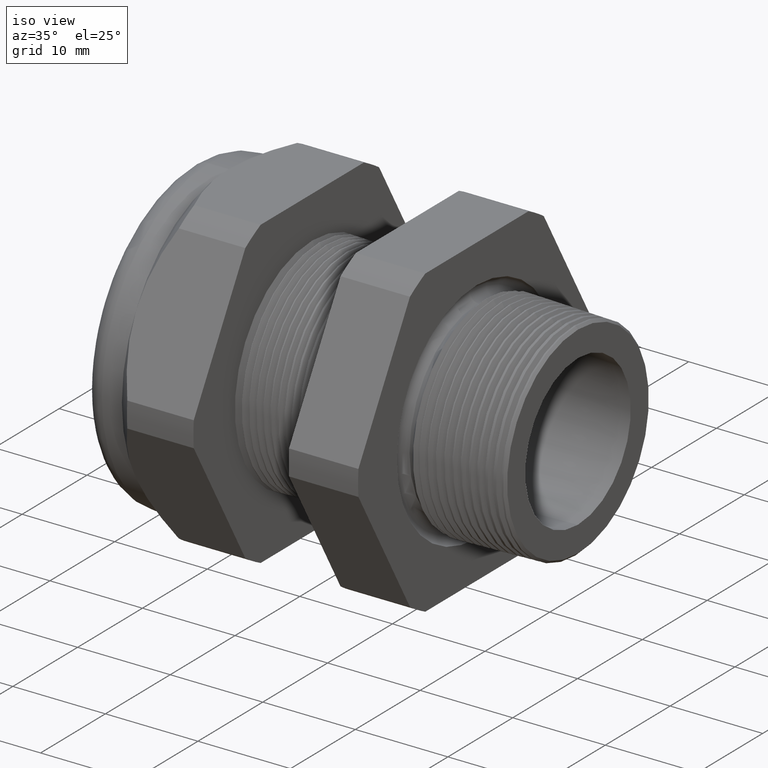
[diagram: clean part render]
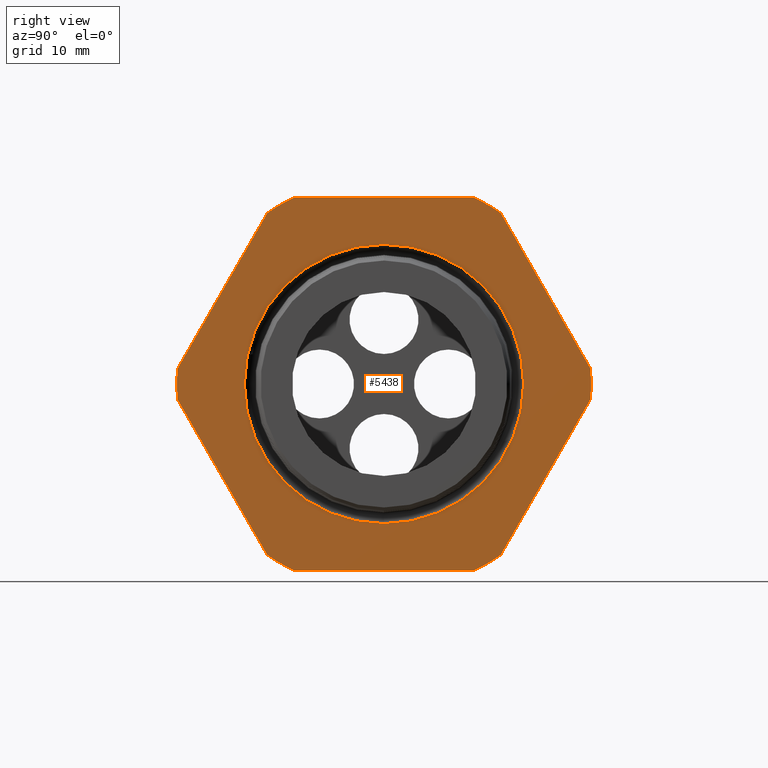
[diagram: tour spotlight — one face highlighted and labeled with its STEP entity id]
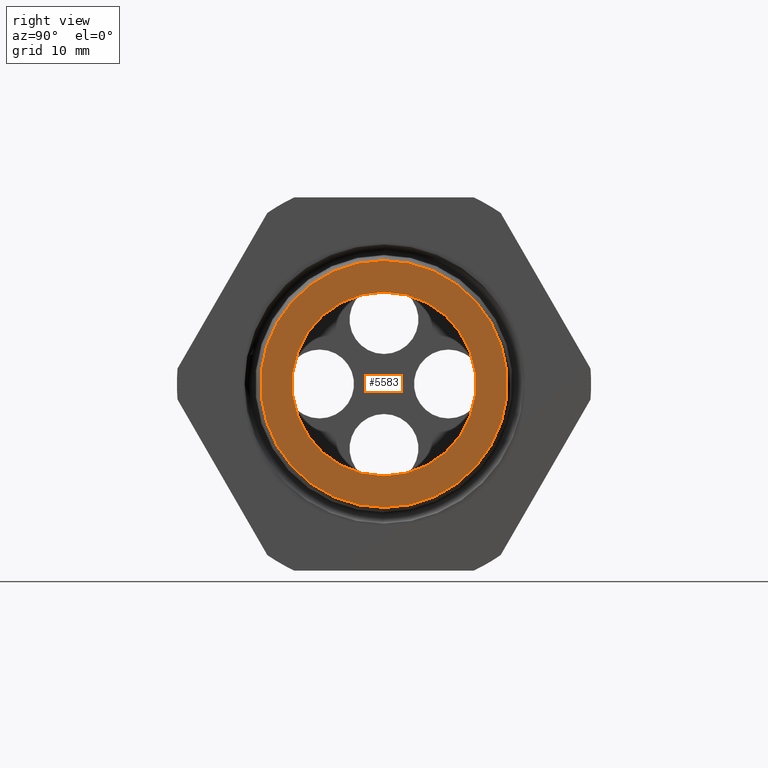
[diagram: tour spotlight — one face highlighted and labeled with its STEP entity id]
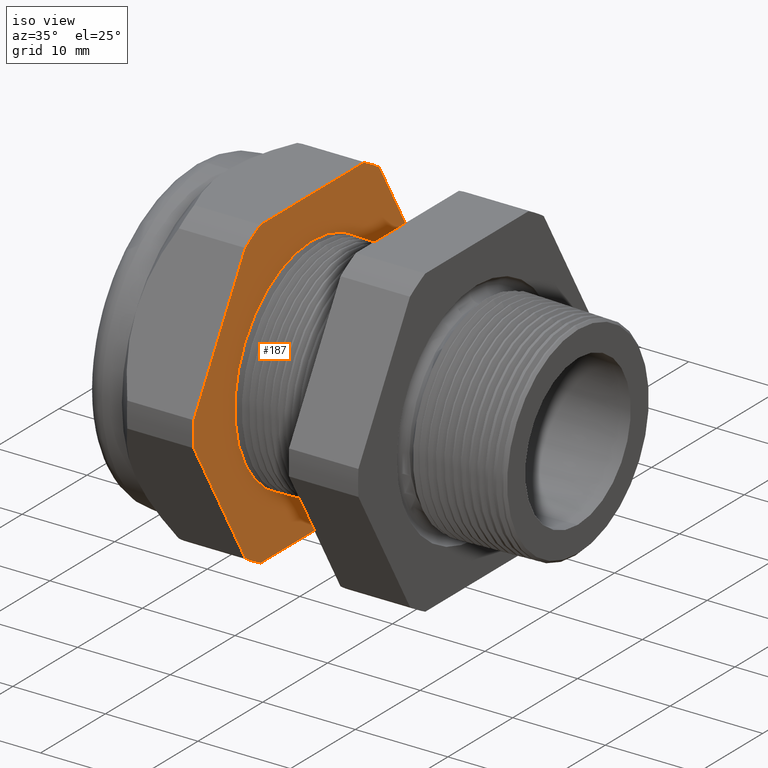
[diagram: tour spotlight — one face highlighted and labeled with its STEP entity id]
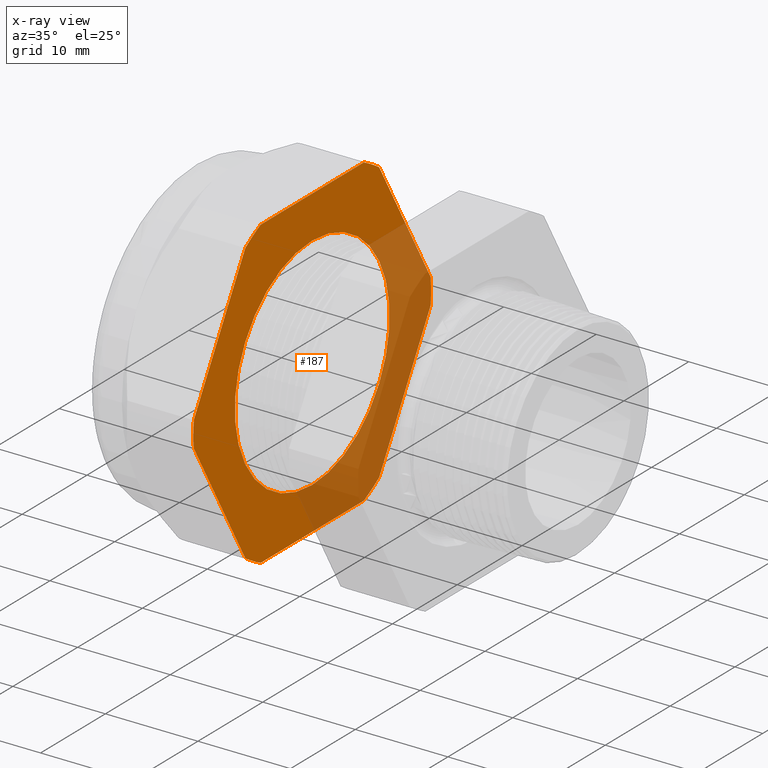
[diagram: x-ray of the same camera — body ghosted, this tour face saturated]
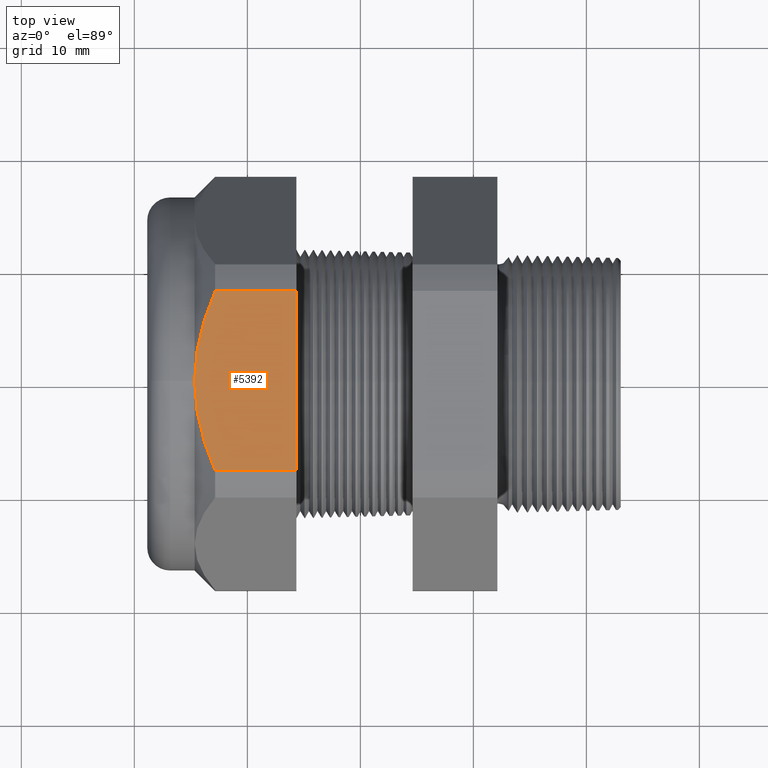
[diagram: tour spotlight — one face highlighted and labeled with its STEP entity id]
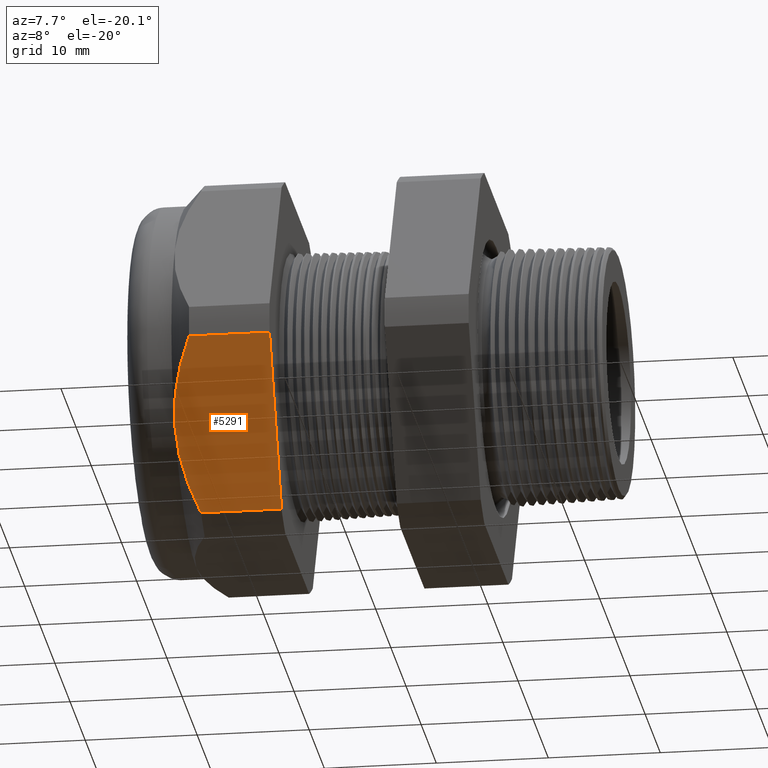
[diagram: tour spotlight — one face highlighted and labeled with its STEP entity id]
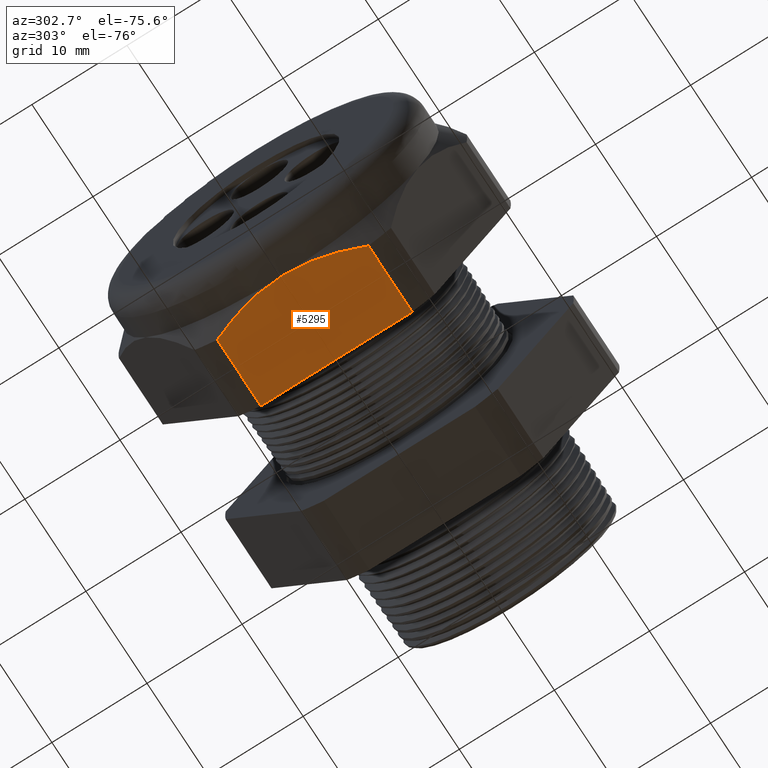
[diagram: tour spotlight — one face highlighted and labeled with its STEP entity id]
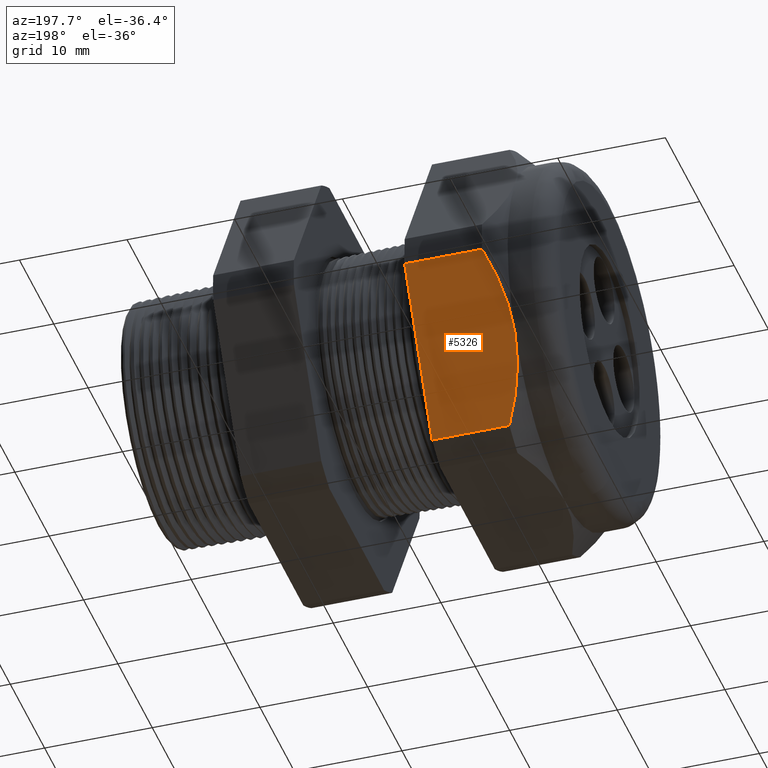
[diagram: tour spotlight — one face highlighted and labeled with its STEP entity id]
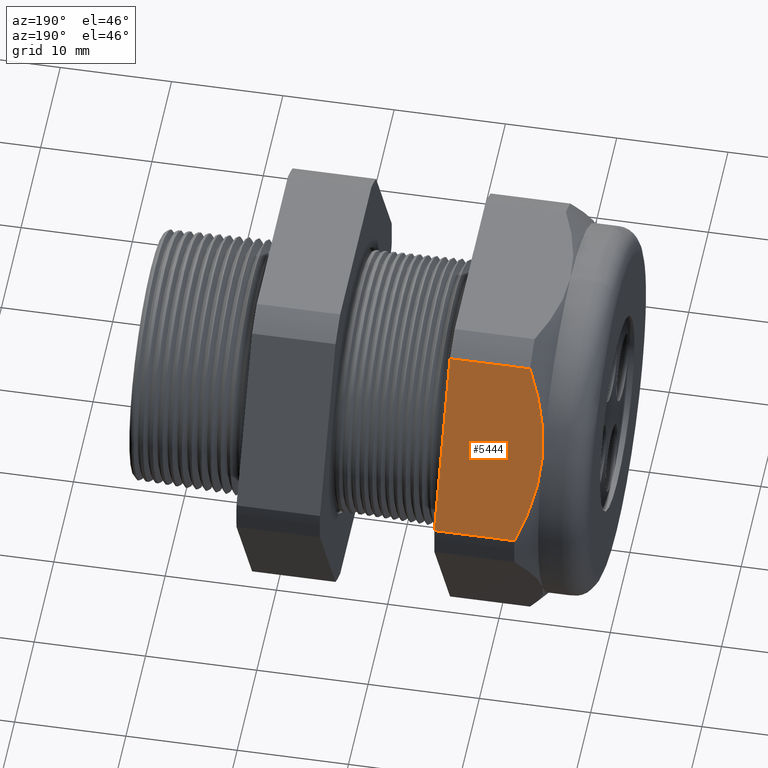
[diagram: tour spotlight — one face highlighted and labeled with its STEP entity id]
A machine part: a face-by-face anatomy tour. The part has 214 B-rep faces; the first image is the clean iso view, then the 8 largest visible faces are spotlighted one at a time (largest first), each with its STEP entity span.

Face 1 — right view, entity #5438. In plain terms, the highlighted planar face has unit normal (1, 0, 0).
Definition (entity closure, byte-faithful):
#2371 = DIRECTION ( 'NONE',  ( 0.0000000000000000000, 0.0000000000000000000, -1.000000000000000000 ) ) ;
#2372 = DIRECTION ( 'NONE',  ( 1.000000000000000000, 0.0000000000000000000, 0.0000000000000000000 ) ) ;
#2373 = CARTESIAN_POINT ( 'NONE',  ( -0.3100000000000000000, 0.0000000000000000000, 0.0000000000000000000 ) ) ;
#2374 = AXIS2_PLACEMENT_3D ( 'NONE', #2373, #2372, #2371 ) ;
#2379 = CIRCLE ( 'NONE', #2374, 0.4863026235185991000 ) ;
#2417 = CARTESIAN_POINT ( 'NONE',  ( -0.3100000000000000000, 0.0000000000000000000, -0.4863026235185991000 ) ) ;
#2459 = CARTESIAN_POINT ( 'NONE',  ( -0.3100000000000000000, 5.955489513090126900E-017, 0.4863026235185991000 ) ) ;
#3676 = CARTESIAN_POINT ( 'NONE',  ( -0.3100000000000000000, 0.0000000000000000000, 0.0000000000000000000 ) ) ;
#3677 = CARTESIAN_POINT ( 'NONE',  ( -0.3100000000000000000, 0.7194909755756817600, -0.05380507471562094600 ) ) ;
#3678 = CARTESIAN_POINT ( 'NONE',  ( -0.3100000000000000000, 0.4063420493440886800, -0.5961949252843790100 ) ) ;
#3679 = DIRECTION ( 'NONE',  ( 0.0000000000000000000, 0.4999999999999996100, 0.8660254037844388200 ) ) ;
#3680 = VECTOR ( 'NONE', #3679, 39.37007874015748900 ) ;
#3681 = CARTESIAN_POINT ( 'NONE',  ( -0.3100000000000000000, 0.8879165124598849000, 0.2379165124598850200 ) ) ;
#3682 = LINE ( 'NONE', #3681, #3680 ) ;
#3724 = CARTESIAN_POINT ( 'NONE',  ( -0.3100000000000000000, 0.3131489262315937900, 0.6499999999999999100 ) ) ;
#3725 = DIRECTION ( 'NONE',  ( 0.0000000000000000000, 0.0000000000000000000, -1.000000000000000000 ) ) ;
#3726 = DIRECTION ( 'NONE',  ( 1.000000000000000000, 0.0000000000000000000, 0.0000000000000000000 ) ) ;
#3727 = CARTESIAN_POINT ( 'NONE',  ( -0.3100000000000000000, 0.0000000000000000000, 0.0000000000000000000 ) ) ;
#3728 = AXIS2_PLACEMENT_3D ( 'NONE', #3727, #3726, #3725 ) ;
#3729 = CIRCLE ( 'NONE', #3728, 0.7215000000000000300 ) ;
#3730 = CARTESIAN_POINT ( 'NONE',  ( -0.3100000000000000000, 0.4063420493440890700, 0.5961949252843787800 ) ) ;
#3731 = DIRECTION ( 'NONE',  ( 0.0000000000000000000, -0.4999999999999998900, 0.8660254037844386000 ) ) ;
#3732 = VECTOR ( 'NONE', #3731, 39.37007874015748100 ) ;
#3733 = CARTESIAN_POINT ( 'NONE',  ( -0.3100000000000000000, 0.8879165124598854500, -0.2379165124598849300 ) ) ;
#3734 = LINE ( 'NONE', #3733, #3732 ) ;
#3735 = CARTESIAN_POINT ( 'NONE',  ( -0.3100000000000000000, 0.7194909755756817600, 0.05380507471562173000 ) ) ;
#3736 = DIRECTION ( 'NONE',  ( 0.0000000000000000000, 0.0000000000000000000, -1.000000000000000000 ) ) ;
#3737 = DIRECTION ( 'NONE',  ( 1.000000000000000000, 0.0000000000000000000, 0.0000000000000000000 ) ) ;
#3738 = AXIS2_PLACEMENT_3D ( 'NONE', #3676, #3737, #3736 ) ;
#3739 = CIRCLE ( 'NONE', #3738, 0.7214999999999999200 ) ;
#3757 = DIRECTION ( 'NONE',  ( 0.0000000000000000000, 0.0000000000000000000, -1.000000000000000000 ) ) ;
#3758 = DIRECTION ( 'NONE',  ( 1.000000000000000000, 0.0000000000000000000, 0.0000000000000000000 ) ) ;
#3759 = CARTESIAN_POINT ( 'NONE',  ( -0.3100000000000000000, 0.0000000000000000000, 0.0000000000000000000 ) ) ;
#3760 = AXIS2_PLACEMENT_3D ( 'NONE', #3759, #3758, #3757 ) ;
#3761 = CIRCLE ( 'NONE', #3760, 0.4863026235185991000 ) ;
#3762 = DIRECTION ( 'NONE',  ( 0.0000000000000000000, 0.0000000000000000000, -1.000000000000000000 ) ) ;
#3763 = DIRECTION ( 'NONE',  ( 1.000000000000000000, 0.0000000000000000000, 0.0000000000000000000 ) ) ;
#3764 = CARTESIAN_POINT ( 'NONE',  ( -0.3100000000000000000, 1.300000000000000000, 0.0000000000000000000 ) ) ;
#3765 = AXIS2_PLACEMENT_3D ( 'NONE', #3764, #3763, #3762 ) ;
#3766 = PLANE ( 'NONE',  #3765 ) ;
#3767 = FACE_OUTER_BOUND ( 'NONE', #5415, .T. ) ;
#3772 = FACE_BOUND ( 'NONE', #5439, .T. ) ;
#3798 = CARTESIAN_POINT ( 'NONE',  ( -0.3100000000000000000, 0.0000000000000000000, 0.0000000000000000000 ) ) ;
#3799 = CARTESIAN_POINT ( 'NONE',  ( -0.3100000000000000000, 0.3131489262315934100, -0.6500000000000001300 ) ) ;
#3800 = DIRECTION ( 'NONE',  ( 0.0000000000000000000, 1.000000000000000000, 0.0000000000000000000 ) ) ;
#3801 = VECTOR ( 'NONE', #3800, 39.37007874015748100 ) ;
#3802 = CARTESIAN_POINT ( 'NONE',  ( -0.3100000000000000000, 1.300000000000000000, -0.6500000000000001300 ) ) ;
#3803 = LINE ( 'NONE', #3802, #3801 ) ;
#3804 = CARTESIAN_POINT ( 'NONE',  ( -0.3100000000000000000, -0.3131489262315934100, -0.6500000000000001300 ) ) ;
#3805 = DIRECTION ( 'NONE',  ( 0.0000000000000000000, 0.0000000000000000000, -1.000000000000000000 ) ) ;
#3806 = DIRECTION ( 'NONE',  ( 1.000000000000000000, 0.0000000000000000000, 0.0000000000000000000 ) ) ;
#3807 = CARTESIAN_POINT ( 'NONE',  ( -0.3100000000000000000, 0.0000000000000000000, 0.0000000000000000000 ) ) ;
#3808 = AXIS2_PLACEMENT_3D ( 'NONE', #3807, #3806, #3805 ) ;
#3809 = CIRCLE ( 'NONE', #3808, 0.7215000000000000300 ) ;
#3827 = CARTESIAN_POINT ( 'NONE',  ( -0.3100000000000000000, -0.7194909755756819800, 0.05380507471562025900 ) ) ;
#3828 = DIRECTION ( 'NONE',  ( 0.0000000000000000000, -0.4999999999999995600, -0.8660254037844388200 ) ) ;
#3829 = VECTOR ( 'NONE', #3828, 39.37007874015748900 ) ;
#3830 = CARTESIAN_POINT ( 'NONE',  ( -0.3100000000000000000, -0.2379165124598858200, 0.8879165124598844500 ) ) ;
#3831 = LINE ( 'NONE', #3830, #3829 ) ;
#3832 = CARTESIAN_POINT ( 'NONE',  ( -0.3100000000000000000, -0.4063420493440885700, 0.5961949252843791200 ) ) ;
#3833 = DIRECTION ( 'NONE',  ( 0.0000000000000000000, 0.0000000000000000000, -1.000000000000000000 ) ) ;
#3834 = DIRECTION ( 'NONE',  ( 1.000000000000000000, 0.0000000000000000000, 0.0000000000000000000 ) ) ;
#3835 = CARTESIAN_POINT ( 'NONE',  ( -0.3100000000000000000, 0.0000000000000000000, 0.0000000000000000000 ) ) ;
#3836 = AXIS2_PLACEMENT_3D ( 'NONE', #3835, #3834, #3833 ) ;
#3837 = CIRCLE ( 'NONE', #3836, 0.7215000000000000300 ) ;
#3838 = CARTESIAN_POINT ( 'NONE',  ( -0.3100000000000000000, -0.3131489262315937400, 0.6500000000000000200 ) ) ;
#3839 = DIRECTION ( 'NONE',  ( 0.0000000000000000000, -1.000000000000000000, 0.0000000000000000000 ) ) ;
#3840 = VECTOR ( 'NONE', #3839, 39.37007874015748100 ) ;
#3841 = CARTESIAN_POINT ( 'NONE',  ( -0.3100000000000000000, 1.300000000000000000, 0.6499999999999999100 ) ) ;
#3842 = LINE ( 'NONE', #3841, #3840 ) ;
#3853 = DIRECTION ( 'NONE',  ( 0.0000000000000000000, 0.0000000000000000000, -1.000000000000000000 ) ) ;
#3854 = DIRECTION ( 'NONE',  ( 1.000000000000000000, 0.0000000000000000000, 0.0000000000000000000 ) ) ;
#3855 = AXIS2_PLACEMENT_3D ( 'NONE', #3798, #3854, #3853 ) ;
#3856 = CIRCLE ( 'NONE', #3855, 0.7215000000000000300 ) ;
#3881 = CARTESIAN_POINT ( 'NONE',  ( -0.3100000000000000000, -0.4063420493440881300, -0.5961949252843793400 ) ) ;
#3882 = DIRECTION ( 'NONE',  ( 0.0000000000000000000, 0.5000000000000001100, -0.8660254037844386000 ) ) ;
#3883 = VECTOR ( 'NONE', #3882, 39.37007874015748100 ) ;
#3884 = CARTESIAN_POINT ( 'NONE',  ( -0.3100000000000000000, -0.2379165124598852700, -0.8879165124598854500 ) ) ;
#3885 = LINE ( 'NONE', #3884, #3883 ) ;
#3886 = CARTESIAN_POINT ( 'NONE',  ( -0.3100000000000000000, -0.7194909755756819800, -0.05380507471562082100 ) ) ;
#3887 = DIRECTION ( 'NONE',  ( 0.0000000000000000000, 0.0000000000000000000, -1.000000000000000000 ) ) ;
#3888 = DIRECTION ( 'NONE',  ( 1.000000000000000000, 0.0000000000000000000, 0.0000000000000000000 ) ) ;
#3889 = CARTESIAN_POINT ( 'NONE',  ( -0.3100000000000000000, 0.0000000000000000000, 0.0000000000000000000 ) ) ;
#3890 = AXIS2_PLACEMENT_3D ( 'NONE', #3889, #3888, #3887 ) ;
#3891 = CIRCLE ( 'NONE', #3890, 0.7215000000000000300 ) ;
#4742 = EDGE_CURVE ( 'NONE', #4758, #4750, #2379, .T. ) ;
#4750 = VERTEX_POINT ( 'NONE', #2417 ) ;
#4758 = VERTEX_POINT ( 'NONE', #2459 ) ;
#5415 = EDGE_LOOP ( 'NONE', ( #5416, #5420, #5423, #5426, #5483, #5486, #5489, #5492, #5496, #5470, #5473, #5476 ) ) ;
#5416 = ORIENTED_EDGE ( 'NONE', *, *, #5417, .T. ) ;
#5417 = EDGE_CURVE ( 'NONE', #5418, #5419, #3682, .T. ) ;
#5418 = VERTEX_POINT ( 'NONE', #3678 ) ;
#5419 = VERTEX_POINT ( 'NONE', #3677 ) ;
#5420 = ORIENTED_EDGE ( 'NONE', *, *, #5421, .T. ) ;
#5421 = EDGE_CURVE ( 'NONE', #5419, #5422, #3739, .T. ) ;
#5422 = VERTEX_POINT ( 'NONE', #3735 ) ;
#5423 = ORIENTED_EDGE ( 'NONE', *, *, #5424, .T. ) ;
#5424 = EDGE_CURVE ( 'NONE', #5422, #5425, #3734, .T. ) ;
#5425 = VERTEX_POINT ( 'NONE', #3730 ) ;
#5426 = ORIENTED_EDGE ( 'NONE', *, *, #5427, .T. ) ;
#5427 = EDGE_CURVE ( 'NONE', #5425, #5428, #3729, .T. ) ;
#5428 = VERTEX_POINT ( 'NONE', #3724 ) ;
#5438 = ADVANCED_FACE ( 'NONE', ( #3772, #3767 ), #3766, .T. ) ;
#5439 = EDGE_LOOP ( 'NONE', ( #5440, #5499 ) ) ;
#5440 = ORIENTED_EDGE ( 'NONE', *, *, #5441, .F. ) ;
#5441 = EDGE_CURVE ( 'NONE', #4750, #4758, #3761, .T. ) ;
#5470 = ORIENTED_EDGE ( 'NONE', *, *, #5471, .T. ) ;
#5471 = EDGE_CURVE ( 'NONE', #5498, #5472, #3809, .T. ) ;
#5472 = VERTEX_POINT ( 'NONE', #3804 ) ;
#5473 = ORIENTED_EDGE ( 'NONE', *, *, #5474, .T. ) ;
#5474 = EDGE_CURVE ( 'NONE', #5472, #5475, #3803, .T. ) ;
#5475 = VERTEX_POINT ( 'NONE', #3799 ) ;
#5476 = ORIENTED_EDGE ( 'NONE', *, *, #5477, .T. ) ;
#5477 = EDGE_CURVE ( 'NONE', #5475, #5418, #3856, .T. ) ;
#5483 = ORIENTED_EDGE ( 'NONE', *, *, #5484, .T. ) ;
#5484 = EDGE_CURVE ( 'NONE', #5428, #5485, #3842, .T. ) ;
#5485 = VERTEX_POINT ( 'NONE', #3838 ) ;
#5486 = ORIENTED_EDGE ( 'NONE', *, *, #5487, .T. ) ;
#5487 = EDGE_CURVE ( 'NONE', #5485, #5488, #3837, .T. ) ;
#5488 = VERTEX_POINT ( 'NONE', #3832 ) ;
#5489 = ORIENTED_EDGE ( 'NONE', *, *, #5490, .T. ) ;
#5490 = EDGE_CURVE ( 'NONE', #5488, #5491, #3831, .T. ) ;
#5491 = VERTEX_POINT ( 'NONE', #3827 ) ;
#5492 = ORIENTED_EDGE ( 'NONE', *, *, #5493, .T. ) ;
#5493 = EDGE_CURVE ( 'NONE', #5491, #5495, #3891, .T. ) ;
#5495 = VERTEX_POINT ( 'NONE', #3886 ) ;
#5496 = ORIENTED_EDGE ( 'NONE', *, *, #5497, .T. ) ;
#5497 = EDGE_CURVE ( 'NONE', #5495, #5498, #3885, .T. ) ;
#5498 = VERTEX_POINT ( 'NONE', #3881 ) ;
#5499 = ORIENTED_EDGE ( 'NONE', *, *, #4742, .F. ) ;

Face 2 — right view, entity #5583. In plain terms, the highlighted planar face has unit normal (1, 0, 0).
Definition (entity closure, byte-faithful):
#3 = VERTEX_POINT ( 'NONE', #790 ) ;
#8 = VERTEX_POINT ( 'NONE', #768 ) ;
#18 = EDGE_CURVE ( 'NONE', #8, #3, #819, .T. ) ;
#768 = CARTESIAN_POINT ( 'NONE',  ( 0.1200000000000000200, 0.0000000000000000000, 0.3204016610924743100 ) ) ;
#790 = CARTESIAN_POINT ( 'NONE',  ( 0.1200000000000000200, 4.135642411978520400E-017, -0.3204016610924743100 ) ) ;
#815 = DIRECTION ( 'NONE',  ( 0.0000000000000000000, 0.0000000000000000000, -1.000000000000000000 ) ) ;
#816 = DIRECTION ( 'NONE',  ( 1.000000000000000000, 0.0000000000000000000, 0.0000000000000000000 ) ) ;
#817 = CARTESIAN_POINT ( 'NONE',  ( 0.1200000000000000200, 0.0000000000000000000, 0.0000000000000000000 ) ) ;
#818 = AXIS2_PLACEMENT_3D ( 'NONE', #817, #816, #815 ) ;
#819 = CIRCLE ( 'NONE', #818, 0.3204016610924743100 ) ;
#3876 = DIRECTION ( 'NONE',  ( 0.0000000000000000000, 0.0000000000000000000, -1.000000000000000000 ) ) ;
#3877 = DIRECTION ( 'NONE',  ( 1.000000000000000000, 0.0000000000000000000, 0.0000000000000000000 ) ) ;
#3878 = CARTESIAN_POINT ( 'NONE',  ( 0.1200000000000000200, 0.0000000000000000000, 0.0000000000000000000 ) ) ;
#3879 = AXIS2_PLACEMENT_3D ( 'NONE', #3878, #3877, #3876 ) ;
#3880 = CIRCLE ( 'NONE', #3879, 0.4301292403640452600 ) ;
#3915 = DIRECTION ( 'NONE',  ( 0.0000000000000000000, 0.0000000000000000000, -1.000000000000000000 ) ) ;
#3916 = DIRECTION ( 'NONE',  ( 1.000000000000000000, 0.0000000000000000000, 0.0000000000000000000 ) ) ;
#3917 = CARTESIAN_POINT ( 'NONE',  ( 0.1200000000000000200, 0.0000000000000000000, 0.0000000000000000000 ) ) ;
#3918 = AXIS2_PLACEMENT_3D ( 'NONE', #3917, #3916, #3915 ) ;
#3923 = CIRCLE ( 'NONE', #3918, 0.3204016610924743100 ) ;
#3988 = DIRECTION ( 'NONE',  ( 0.0000000000000000000, 0.0000000000000000000, -1.000000000000000000 ) ) ;
#3989 = DIRECTION ( 'NONE',  ( 1.000000000000000000, 0.0000000000000000000, 0.0000000000000000000 ) ) ;
#3990 = CARTESIAN_POINT ( 'NONE',  ( 0.1200000000000000200, 0.3204016610924743100, 0.0000000000000000000 ) ) ;
#3991 = AXIS2_PLACEMENT_3D ( 'NONE', #3990, #3989, #3988 ) ;
#3992 = PLANE ( 'NONE',  #3991 ) ;
#3993 = FACE_BOUND ( 'NONE', #5504, .T. ) ;
#3994 = FACE_OUTER_BOUND ( 'NONE', #5500, .T. ) ;
#4371 = CARTESIAN_POINT ( 'NONE',  ( 0.1200000000000000200, 5.332067285935767100E-017, -0.4301292403640452600 ) ) ;
#4372 = CARTESIAN_POINT ( 'NONE',  ( 0.1200000000000000200, 0.0000000000000000000, 0.4301292403640452600 ) ) ;
#4373 = DIRECTION ( 'NONE',  ( 0.0000000000000000000, 0.0000000000000000000, -1.000000000000000000 ) ) ;
#4374 = DIRECTION ( 'NONE',  ( 1.000000000000000000, 0.0000000000000000000, 0.0000000000000000000 ) ) ;
#4375 = CARTESIAN_POINT ( 'NONE',  ( 0.1200000000000000200, 0.0000000000000000000, 0.0000000000000000000 ) ) ;
#4376 = AXIS2_PLACEMENT_3D ( 'NONE', #4375, #4374, #4373 ) ;
#4377 = CIRCLE ( 'NONE', #4376, 0.4301292403640452600 ) ;
#5500 = EDGE_LOOP ( 'NONE', ( #5501, #5503 ) ) ;
#5501 = ORIENTED_EDGE ( 'NONE', *, *, #5502, .T. ) ;
#5502 = EDGE_CURVE ( 'NONE', #5786, #5787, #3880, .T. ) ;
#5503 = ORIENTED_EDGE ( 'NONE', *, *, #5785, .T. ) ;
#5504 = EDGE_LOOP ( 'NONE', ( #5505, #5506 ) ) ;
#5505 = ORIENTED_EDGE ( 'NONE', *, *, #18, .F. ) ;
#5506 = ORIENTED_EDGE ( 'NONE', *, *, #5522, .F. ) ;
#5522 = EDGE_CURVE ( 'NONE', #3, #8, #3923, .T. ) ;
#5583 = ADVANCED_FACE ( 'NONE', ( #3994, #3993 ), #3992, .T. ) ;
#5785 = EDGE_CURVE ( 'NONE', #5787, #5786, #4377, .T. ) ;
#5786 = VERTEX_POINT ( 'NONE', #4372 ) ;
#5787 = VERTEX_POINT ( 'NONE', #4371 ) ;

Face 3 — iso view, entity #187. An x-ray twin of the same camera follows (body ghosted, this face saturated) — the face is partly hidden behind the body. In plain terms, the highlighted planar face has unit normal (1, 0, 0).
Definition (entity closure, byte-faithful):
#174 = ORIENTED_EDGE ( 'NONE', *, *, #5376, .T. ) ;
#175 = ORIENTED_EDGE ( 'NONE', *, *, #5391, .T. ) ;
#176 = ORIENTED_EDGE ( 'NONE', *, *, #5408, .T. ) ;
#177 = ORIENTED_EDGE ( 'NONE', *, *, #5340, .T. ) ;
#178 = ORIENTED_EDGE ( 'NONE', *, *, #5358, .T. ) ;
#179 = ORIENTED_EDGE ( 'NONE', *, *, #5290, .T. ) ;
#180 = ORIENTED_EDGE ( 'NONE', *, *, #5362, .T. ) ;
#181 = ORIENTED_EDGE ( 'NONE', *, *, #5294, .T. ) ;
#187 = ADVANCED_FACE ( 'NONE', ( #1143, #1142 ), #1141, .T. ) ;
#188 = EDGE_LOOP ( 'NONE', ( #189, #191 ) ) ;
#189 = ORIENTED_EDGE ( 'NONE', *, *, #190, .F. ) ;
#190 = EDGE_CURVE ( 'NONE', #5713, #4649, #1136, .T. ) ;
#191 = ORIENTED_EDGE ( 'NONE', *, *, #5728, .F. ) ;
#192 = EDGE_LOOP ( 'NONE', ( #193, #4647, #5539, #5540, #174, #175, #176, #177, #178, #179, #180, #181 ) ) ;
#193 = ORIENTED_EDGE ( 'NONE', *, *, #5312, .T. ) ;
#1132 = DIRECTION ( 'NONE',  ( 0.0000000000000000000, 0.0000000000000000000, -1.000000000000000000 ) ) ;
#1133 = DIRECTION ( 'NONE',  ( 1.000000000000000000, 0.0000000000000000000, 0.0000000000000000000 ) ) ;
#1134 = CARTESIAN_POINT ( 'NONE',  ( -1.010314960629921100, 0.0000000000000000000, 0.0000000000000000000 ) ) ;
#1135 = AXIS2_PLACEMENT_3D ( 'NONE', #1134, #1133, #1132 ) ;
#1136 = CIRCLE ( 'NONE', #1135, 0.4699999999999999700 ) ;
#1137 = DIRECTION ( 'NONE',  ( 0.0000000000000000000, 0.0000000000000000000, -1.000000000000000000 ) ) ;
#1138 = DIRECTION ( 'NONE',  ( 1.000000000000000000, 0.0000000000000000000, 0.0000000000000000000 ) ) ;
#1139 = CARTESIAN_POINT ( 'NONE',  ( -1.010314960629921100, 0.4699999999999999700, 0.0000000000000000000 ) ) ;
#1140 = AXIS2_PLACEMENT_3D ( 'NONE', #1139, #1138, #1137 ) ;
#1141 = PLANE ( 'NONE',  #1140 ) ;
#1142 = FACE_OUTER_BOUND ( 'NONE', #192, .T. ) ;
#1143 = FACE_BOUND ( 'NONE', #188, .T. ) ;
#2180 = CARTESIAN_POINT ( 'NONE',  ( -1.010314960629921100, 5.755839955992559700E-017, -0.4699999999999999700 ) ) ;
#3410 = CARTESIAN_POINT ( 'NONE',  ( -1.010314960629921100, 0.0000000000000000000, 0.0000000000000000000 ) ) ;
#3412 = DIRECTION ( 'NONE',  ( 0.0000000000000000000, 0.0000000000000000000, -1.000000000000000000 ) ) ;
#3413 = DIRECTION ( 'NONE',  ( 1.000000000000000000, 0.0000000000000000000, 0.0000000000000000000 ) ) ;
#3414 = AXIS2_PLACEMENT_3D ( 'NONE', #3420, #3413, #3412 ) ;
#3415 = CIRCLE ( 'NONE', #3414, 0.7215000000000000300 ) ;
#3420 = CARTESIAN_POINT ( 'NONE',  ( -1.010314960629921100, 0.0000000000000000000, 0.0000000000000000000 ) ) ;
#3449 = CARTESIAN_POINT ( 'NONE',  ( -1.010314960629921100, -0.3131489262315934100, -0.6500000000000001300 ) ) ;
#3460 = DIRECTION ( 'NONE',  ( 0.0000000000000000000, 0.0000000000000000000, -1.000000000000000000 ) ) ;
#3461 = DIRECTION ( 'NONE',  ( 1.000000000000000000, 0.0000000000000000000, 0.0000000000000000000 ) ) ;
#3462 = AXIS2_PLACEMENT_3D ( 'NONE', #3410, #3461, #3460 ) ;
#3463 = CIRCLE ( 'NONE', #3462, 0.7215000000000000300 ) ;
#3468 = DIRECTION ( 'NONE',  ( 0.0000000000000000000, 0.4999999999999996100, 0.8660254037844388200 ) ) ;
#3469 = VECTOR ( 'NONE', #3468, 39.37007874015748900 ) ;
#3470 = CARTESIAN_POINT ( 'NONE',  ( -1.010314960629921100, 0.6804165124598852100, -0.1214840301106568700 ) ) ;
#3471 = LINE ( 'NONE', #3470, #3469 ) ;
#3472 = CARTESIAN_POINT ( 'NONE',  ( -1.010314960629921100, 0.7194909755756818700, -0.05380507471562089000 ) ) ;
#3519 = CARTESIAN_POINT ( 'NONE',  ( -1.010314960629921100, 0.3131489262315934100, -0.6500000000000001300 ) ) ;
#3529 = CARTESIAN_POINT ( 'NONE',  ( -1.010314960629921100, -0.4063420493440885700, 0.5961949252843791200 ) ) ;
#3540 = DIRECTION ( 'NONE',  ( 0.0000000000000000000, 0.0000000000000000000, -1.000000000000000000 ) ) ;
#3541 = DIRECTION ( 'NONE',  ( 1.000000000000000000, 0.0000000000000000000, 0.0000000000000000000 ) ) ;
#3542 = AXIS2_PLACEMENT_3D ( 'NONE', #3549, #3541, #3540 ) ;
#3543 = CIRCLE ( 'NONE', #3542, 0.7215000000000000300 ) ;
#3549 = CARTESIAN_POINT ( 'NONE',  ( -1.010314960629921100, 0.0000000000000000000, 0.0000000000000000000 ) ) ;
#3551 = CARTESIAN_POINT ( 'NONE',  ( -1.010314960629921100, -0.7194909755756819800, 0.05380507471562025900 ) ) ;
#3557 = CARTESIAN_POINT ( 'NONE',  ( -1.010314960629921100, 0.4063420493440886800, -0.5961949252843790100 ) ) ;
#3562 = DIRECTION ( 'NONE',  ( 0.0000000000000000000, 0.5000000000000001100, -0.8660254037844386000 ) ) ;
#3563 = VECTOR ( 'NONE', #3562, 39.37007874015748100 ) ;
#3564 = CARTESIAN_POINT ( 'NONE',  ( -1.010314960629921100, -0.4454165124598852300, -0.5285159698893432400 ) ) ;
#3571 = LINE ( 'NONE', #3564, #3563 ) ;
#3586 = CARTESIAN_POINT ( 'NONE',  ( -1.010314960629921100, -0.7194909755756819800, -0.05380507471562082100 ) ) ;
#3589 = DIRECTION ( 'NONE',  ( 0.0000000000000000000, -1.000000000000000000, 0.0000000000000000000 ) ) ;
#3590 = VECTOR ( 'NONE', #3589, 39.37007874015748100 ) ;
#3591 = CARTESIAN_POINT ( 'NONE',  ( -1.010314960629921100, 0.4699999999999999700, 0.6499999999999999100 ) ) ;
#3592 = LINE ( 'NONE', #3591, #3590 ) ;
#3599 = CARTESIAN_POINT ( 'NONE',  ( -1.010314960629921100, -0.4063420493440881300, -0.5961949252843793400 ) ) ;
#3610 = DIRECTION ( 'NONE',  ( 0.0000000000000000000, 1.000000000000000000, 0.0000000000000000000 ) ) ;
#3611 = VECTOR ( 'NONE', #3610, 39.37007874015748100 ) ;
#3612 = CARTESIAN_POINT ( 'NONE',  ( -1.010314960629921100, 0.4699999999999999700, -0.6500000000000001300 ) ) ;
#3616 = LINE ( 'NONE', #3612, #3611 ) ;
#3624 = DIRECTION ( 'NONE',  ( 0.0000000000000000000, 0.0000000000000000000, -1.000000000000000000 ) ) ;
#3625 = DIRECTION ( 'NONE',  ( 1.000000000000000000, 0.0000000000000000000, 0.0000000000000000000 ) ) ;
#3626 = CARTESIAN_POINT ( 'NONE',  ( -1.010314960629921100, 0.0000000000000000000, 0.0000000000000000000 ) ) ;
#3627 = AXIS2_PLACEMENT_3D ( 'NONE', #3626, #3625, #3624 ) ;
#3628 = CIRCLE ( 'NONE', #3627, 0.7215000000000000300 ) ;
#3640 = CARTESIAN_POINT ( 'NONE',  ( -1.010314960629921100, 0.4063420493440890700, 0.5961949252843787800 ) ) ;
#3672 = CARTESIAN_POINT ( 'NONE',  ( -1.010314960629921100, 0.3131489262315937900, 0.6499999999999999100 ) ) ;
#3684 = CARTESIAN_POINT ( 'NONE',  ( -1.010314960629921100, -0.3131489262315937400, 0.6500000000000000200 ) ) ;
#3695 = DIRECTION ( 'NONE',  ( 0.0000000000000000000, -0.4999999999999995600, -0.8660254037844388200 ) ) ;
#3696 = VECTOR ( 'NONE', #3695, 39.37007874015748900 ) ;
#3703 = CARTESIAN_POINT ( 'NONE',  ( -1.010314960629921100, -0.4454165124598855100, 0.5285159698893426800 ) ) ;
#3704 = LINE ( 'NONE', #3703, #3696 ) ;
#3712 = CARTESIAN_POINT ( 'NONE',  ( -1.010314960629921100, 0.0000000000000000000, 0.0000000000000000000 ) ) ;
#3720 = DIRECTION ( 'NONE',  ( 0.0000000000000000000, -0.4999999999999998900, 0.8660254037844386000 ) ) ;
#3721 = VECTOR ( 'NONE', #3720, 39.37007874015748100 ) ;
#3722 = CARTESIAN_POINT ( 'NONE',  ( -1.010314960629921100, 0.6804165124598855500, 0.1214840301106571000 ) ) ;
#3723 = LINE ( 'NONE', #3722, #3721 ) ;
#3741 = CARTESIAN_POINT ( 'NONE',  ( -1.010314960629921100, 0.7194909755756817600, 0.05380507471562173000 ) ) ;
#3752 = DIRECTION ( 'NONE',  ( 0.0000000000000000000, 0.0000000000000000000, -1.000000000000000000 ) ) ;
#3753 = DIRECTION ( 'NONE',  ( 1.000000000000000000, 0.0000000000000000000, 0.0000000000000000000 ) ) ;
#3754 = CARTESIAN_POINT ( 'NONE',  ( -1.010314960629921100, 0.0000000000000000000, 0.0000000000000000000 ) ) ;
#3755 = AXIS2_PLACEMENT_3D ( 'NONE', #3754, #3753, #3752 ) ;
#3756 = CIRCLE ( 'NONE', #3755, 0.7215000000000000300 ) ;
#3768 = DIRECTION ( 'NONE',  ( 0.0000000000000000000, 0.0000000000000000000, -1.000000000000000000 ) ) ;
#3769 = DIRECTION ( 'NONE',  ( 1.000000000000000000, 0.0000000000000000000, 0.0000000000000000000 ) ) ;
#3770 = AXIS2_PLACEMENT_3D ( 'NONE', #3712, #3769, #3768 ) ;
#3771 = CIRCLE ( 'NONE', #3770, 0.7214999999999999200 ) ;
#4265 = CARTESIAN_POINT ( 'NONE',  ( -1.010314960629921100, 0.0000000000000000000, 0.4699999999999999700 ) ) ;
#4291 = DIRECTION ( 'NONE',  ( 0.0000000000000000000, 0.0000000000000000000, -1.000000000000000000 ) ) ;
#4292 = DIRECTION ( 'NONE',  ( 1.000000000000000000, 0.0000000000000000000, 0.0000000000000000000 ) ) ;
#4293 = CARTESIAN_POINT ( 'NONE',  ( -1.010314960629921100, 0.0000000000000000000, 0.0000000000000000000 ) ) ;
#4294 = AXIS2_PLACEMENT_3D ( 'NONE', #4293, #4292, #4291 ) ;
#4295 = CIRCLE ( 'NONE', #4294, 0.4699999999999999700 ) ;
#4647 = ORIENTED_EDGE ( 'NONE', *, *, #5437, .T. ) ;
#4649 = VERTEX_POINT ( 'NONE', #2180 ) ;
#5290 = EDGE_CURVE ( 'NONE', #5367, #5300, #3415, .T. ) ;
#5294 = EDGE_CURVE ( 'NONE', #5317, #5330, #3463, .T. ) ;
#5300 = VERTEX_POINT ( 'NONE', #3449 ) ;
#5310 = VERTEX_POINT ( 'NONE', #3472 ) ;
#5312 = EDGE_CURVE ( 'NONE', #5330, #5310, #3471, .T. ) ;
#5317 = VERTEX_POINT ( 'NONE', #3519 ) ;
#5330 = VERTEX_POINT ( 'NONE', #3557 ) ;
#5334 = VERTEX_POINT ( 'NONE', #3551 ) ;
#5340 = EDGE_CURVE ( 'NONE', #5334, #5349, #3543, .T. ) ;
#5345 = VERTEX_POINT ( 'NONE', #3529 ) ;
#5349 = VERTEX_POINT ( 'NONE', #3586 ) ;
#5358 = EDGE_CURVE ( 'NONE', #5349, #5367, #3571, .T. ) ;
#5362 = EDGE_CURVE ( 'NONE', #5300, #5317, #3616, .T. ) ;
#5367 = VERTEX_POINT ( 'NONE', #3599 ) ;
#5376 = EDGE_CURVE ( 'NONE', #5396, #5413, #3592, .T. ) ;
#5381 = VERTEX_POINT ( 'NONE', #3640 ) ;
#5391 = EDGE_CURVE ( 'NONE', #5413, #5345, #3628, .T. ) ;
#5396 = VERTEX_POINT ( 'NONE', #3672 ) ;
#5408 = EDGE_CURVE ( 'NONE', #5345, #5334, #3704, .T. ) ;
#5413 = VERTEX_POINT ( 'NONE', #3684 ) ;
#5429 = EDGE_CURVE ( 'NONE', #5447, #5381, #3723, .T. ) ;
#5437 = EDGE_CURVE ( 'NONE', #5310, #5447, #3771, .T. ) ;
#5443 = EDGE_CURVE ( 'NONE', #5381, #5396, #3756, .T. ) ;
#5447 = VERTEX_POINT ( 'NONE', #3741 ) ;
#5539 = ORIENTED_EDGE ( 'NONE', *, *, #5429, .T. ) ;
#5540 = ORIENTED_EDGE ( 'NONE', *, *, #5443, .T. ) ;
#5713 = VERTEX_POINT ( 'NONE', #4265 ) ;
#5728 = EDGE_CURVE ( 'NONE', #4649, #5713, #4295, .T. ) ;

Face 4 — top view, entity #5392. In plain terms, the highlighted planar face has unit normal (0, 0, 1).
Definition (entity closure, byte-faithful):
#17 = VERTEX_POINT ( 'NONE', #820 ) ;
#820 = CARTESIAN_POINT ( 'NONE',  ( -1.364645669291338500, 0.0000000000000000000, 0.6499999999999999100 ) ) ;
#2524 = CARTESIAN_POINT ( 'NONE',  ( -1.339012774614851900, -0.1860728161737495400, 0.6499999999999995800 ) ) ;
#2776 = CARTESIAN_POINT ( 'NONE',  ( -1.331388897147413000, -0.2119448594679246300, 0.6499999999999998000 ) ) ;
#3278 = CARTESIAN_POINT ( 'NONE',  ( -1.293145669291338800, -0.3131489262315937900, 0.6499999999999999100 ) ) ;
#3283 = CARTESIAN_POINT ( 'NONE',  ( -1.303853258750207200, -0.2884784734615905600, 0.6499999999999998000 ) ) ;
#3284 = CARTESIAN_POINT ( 'NONE',  ( -1.313769659977807000, -0.2632641016272523300, 0.6499999999999999100 ) ) ;
#3589 = DIRECTION ( 'NONE',  ( 0.0000000000000000000, -1.000000000000000000, 0.0000000000000000000 ) ) ;
#3590 = VECTOR ( 'NONE', #3589, 39.37007874015748100 ) ;
#3591 = CARTESIAN_POINT ( 'NONE',  ( -1.010314960629921100, 0.4699999999999999700, 0.6499999999999999100 ) ) ;
#3592 = LINE ( 'NONE', #3591, #3590 ) ;
#3617 = LINE ( 'NONE', #3675, #3674 ) ;
#3618 = DIRECTION ( 'NONE',  ( 1.000000000000000000, 0.0000000000000000000, 0.0000000000000000000 ) ) ;
#3619 = DIRECTION ( 'NONE',  ( 0.0000000000000000000, 0.0000000000000000000, 1.000000000000000000 ) ) ;
#3620 = CARTESIAN_POINT ( 'NONE',  ( 0.1200000000000000900, -0.3131489262315937900, 0.6499999999999999100 ) ) ;
#3621 = AXIS2_PLACEMENT_3D ( 'NONE', #3620, #3619, #3618 ) ;
#3622 = PLANE ( 'NONE',  #3621 ) ;
#3623 = FACE_OUTER_BOUND ( 'NONE', #5393, .T. ) ;
#3659 = CARTESIAN_POINT ( 'NONE',  ( -1.364645669291338500, 0.0000000000000000000, 0.6499999999999999100 ) ) ;
#3660 = CARTESIAN_POINT ( 'NONE',  ( -1.364645669291338500, 0.02720867923416878100, 0.6499999999999999100 ) ) ;
#3661 = CARTESIAN_POINT ( 'NONE',  ( -1.362922968131963500, 0.05424748414116258000, 0.6500000000000000200 ) ) ;
#3662 = CARTESIAN_POINT ( 'NONE',  ( -1.356334391925264200, 0.1075827506458431200, 0.6499999999999999100 ) ) ;
#3663 = CARTESIAN_POINT ( 'NONE',  ( -1.351470867480276900, 0.1339536167969823400, 0.6500000000000000200 ) ) ;
#3664 = CARTESIAN_POINT ( 'NONE',  ( -1.338984633822156700, 0.1861735441654886700, 0.6500000000000000200 ) ) ;
#3665 = CARTESIAN_POINT ( 'NONE',  ( -1.331363564042517700, 0.2120229154253349400, 0.6500000000000000200 ) ) ;
#3666 = CARTESIAN_POINT ( 'NONE',  ( -1.313764154437382600, 0.2632758613625146300, 0.6499999999999999100 ) ) ;
#3667 = CARTESIAN_POINT ( 'NONE',  ( -1.303845930118102000, 0.2884953587440266500, 0.6499999999999999100 ) ) ;
#3668 = CARTESIAN_POINT ( 'NONE',  ( -1.293145669291338600, 0.3131489262315937900, 0.6499999999999999100 ) ) ;
#3670 = B_SPLINE_CURVE_WITH_KNOTS ( 'NONE', 3,
 ( #3668, #3667, #3666, #3665, #3664, #3663, #3662, #3661, #3660, #3659 ),
 .UNSPECIFIED., .F., .F.,
 ( 4, 2, 2, 2, 4 ),
 ( 0.01244868908973180600, 0.01448184335274442300, 0.01651499761575703900, 0.01854815187876965700, 0.02058130614178227400 ),
 .UNSPECIFIED. ) ;
#3671 = CARTESIAN_POINT ( 'NONE',  ( -1.293145669291338600, 0.3131489262315937900, 0.6499999999999999100 ) ) ;
#3672 = CARTESIAN_POINT ( 'NONE',  ( -1.010314960629921100, 0.3131489262315937900, 0.6499999999999999100 ) ) ;
#3673 = DIRECTION ( 'NONE',  ( -1.000000000000000000, 0.0000000000000000000, 0.0000000000000000000 ) ) ;
#3674 = VECTOR ( 'NONE', #3673, 39.37007874015748100 ) ;
#3675 = CARTESIAN_POINT ( 'NONE',  ( 0.1200000000000000900, 0.3131489262315937900, 0.6499999999999999100 ) ) ;
#3683 = CARTESIAN_POINT ( 'NONE',  ( -1.293145669291338800, -0.3131489262315937900, 0.6499999999999999100 ) ) ;
#3684 = CARTESIAN_POINT ( 'NONE',  ( -1.010314960629921100, -0.3131489262315937400, 0.6500000000000000200 ) ) ;
#3685 = DIRECTION ( 'NONE',  ( -1.000000000000000000, 0.0000000000000000000, 0.0000000000000000000 ) ) ;
#3686 = VECTOR ( 'NONE', #3685, 39.37007874015748100 ) ;
#3687 = CARTESIAN_POINT ( 'NONE',  ( 0.1200000000000000900, -0.3131489262315937400, 0.6500000000000000200 ) ) ;
#3692 = LINE ( 'NONE', #3687, #3686 ) ;
#3773 = CARTESIAN_POINT ( 'NONE',  ( -1.357736925318555400, -0.1077136765109595200, 0.6499999999999998000 ) ) ;
#3774 = CARTESIAN_POINT ( 'NONE',  ( -1.364645669291338900, -0.05447567936366853900, 0.6499999999999998000 ) ) ;
#3775 = CARTESIAN_POINT ( 'NONE',  ( -1.364645669291338500, 0.0000000000000000000, 0.6499999999999999100 ) ) ;
#3778 = B_SPLINE_CURVE_WITH_KNOTS ( 'NONE', 3,
 ( #3775, #3774, #3773, #2524, #2776, #3284, #3283, #3278 ),
 .UNSPECIFIED., .F., .F.,
 ( 4, 2, 2, 4 ),
 ( 0.02058130614178227400, 0.02465197266607504400, 0.02668730592822142500, 0.02872263919036780600 ),
 .UNSPECIFIED. ) ;
#5374 = ORIENTED_EDGE ( 'NONE', *, *, #5412, .F. ) ;
#5375 = ORIENTED_EDGE ( 'NONE', *, *, #5376, .F. ) ;
#5376 = EDGE_CURVE ( 'NONE', #5396, #5413, #3592, .T. ) ;
#5392 = ADVANCED_FACE ( 'NONE', ( #3623 ), #3622, .T. ) ;
#5393 = EDGE_LOOP ( 'NONE', ( #5394, #5398, #5455, #5374, #5375 ) ) ;
#5394 = ORIENTED_EDGE ( 'NONE', *, *, #5395, .T. ) ;
#5395 = EDGE_CURVE ( 'NONE', #5396, #5397, #3617, .T. ) ;
#5396 = VERTEX_POINT ( 'NONE', #3672 ) ;
#5397 = VERTEX_POINT ( 'NONE', #3671 ) ;
#5398 = ORIENTED_EDGE ( 'NONE', *, *, #5399, .T. ) ;
#5399 = EDGE_CURVE ( 'NONE', #5397, #17, #3670, .T. ) ;
#5412 = EDGE_CURVE ( 'NONE', #5413, #5414, #3692, .T. ) ;
#5413 = VERTEX_POINT ( 'NONE', #3684 ) ;
#5414 = VERTEX_POINT ( 'NONE', #3683 ) ;
#5455 = ORIENTED_EDGE ( 'NONE', *, *, #5456, .T. ) ;
#5456 = EDGE_CURVE ( 'NONE', #17, #5414, #3778, .T. ) ;

Face 5 — auxiliary view, entity #5291. In plain terms, the highlighted planar face has unit normal (0, -0.866, -0.5).
Definition (entity closure, byte-faithful):
#3026 = DIRECTION ( 'NONE',  ( -1.000000000000000000, 0.0000000000000000000, 0.0000000000000000000 ) ) ;
#3027 = VECTOR ( 'NONE', #3026, 39.37007874015748100 ) ;
#3405 = DIRECTION ( 'NONE',  ( 0.0000000000000000000, 0.5000000000000001100, -0.8660254037844386000 ) ) ;
#3406 = DIRECTION ( 'NONE',  ( 0.0000000000000000000, -0.8660254037844386000, -0.5000000000000001100 ) ) ;
#3407 = CARTESIAN_POINT ( 'NONE',  ( 0.1200000000000000900, -0.4063420493440883000, -0.5961949252843793400 ) ) ;
#3408 = AXIS2_PLACEMENT_3D ( 'NONE', #3407, #3406, #3405 ) ;
#3409 = PLANE ( 'NONE',  #3408 ) ;
#3411 = FACE_OUTER_BOUND ( 'NONE', #5346, .T. ) ;
#3527 = CARTESIAN_POINT ( 'NONE',  ( 0.1200000000000000900, -0.7194909755756819800, -0.05380507471562082100 ) ) ;
#3528 = LINE ( 'NONE', #3527, #3027 ) ;
#3562 = DIRECTION ( 'NONE',  ( 0.0000000000000000000, 0.5000000000000001100, -0.8660254037844386000 ) ) ;
#3563 = VECTOR ( 'NONE', #3562, 39.37007874015748100 ) ;
#3564 = CARTESIAN_POINT ( 'NONE',  ( -1.010314960629921100, -0.4454165124598852300, -0.5285159698893432400 ) ) ;
#3565 = CARTESIAN_POINT ( 'NONE',  ( -1.293145669291338600, -0.4063420493440881300, -0.5961949252843793400 ) ) ;
#3566 = CARTESIAN_POINT ( 'NONE',  ( -1.314794001287756600, -0.4312810962751702500, -0.5529992289074007200 ) ) ;
#3567 = CARTESIAN_POINT ( 'NONE',  ( -1.332917759362547400, -0.4570573558384616300, -0.5083534377146963200 ) ) ;
#3568 = CARTESIAN_POINT ( 'NONE',  ( -1.357805912917037400, -0.5092737903524782200, -0.4179119201463270500 ) ) ;
#3569 = CARTESIAN_POINT ( 'NONE',  ( -1.364645669291338000, -0.5358248930679733200, -0.3719240612461092200 ) ) ;
#3570 = CARTESIAN_POINT ( 'NONE',  ( -1.364645669291338500, -0.5629165124598851700, -0.3250000000000001800 ) ) ;
#3571 = LINE ( 'NONE', #3564, #3563 ) ;
#3572 = B_SPLINE_CURVE_WITH_KNOTS ( 'NONE', 3,
 ( #3570, #3569, #3568, #3567, #3566, #3565 ),
 .UNSPECIFIED., .F., .F.,
 ( 4, 2, 4 ),
 ( 0.008163776578903783600, 0.01224274182034620000, 0.01632170706178861700 ),
 .UNSPECIFIED. ) ;
#3573 = CARTESIAN_POINT ( 'NONE',  ( -1.364645669291338500, -0.5629165124598851700, -0.3250000000000001800 ) ) ;
#3574 = CARTESIAN_POINT ( 'NONE',  ( -1.364645669291339100, -0.5696940647084652900, -0.3132609351545070900 ) ) ;
#3575 = CARTESIAN_POINT ( 'NONE',  ( -1.364216759191442700, -0.5765336067434361200, -0.3014145008494348900 ) ) ;
#3576 = CARTESIAN_POINT ( 'NONE',  ( -1.362513212994343100, -0.5901225526399743700, -0.2778777561353256200 ) ) ;
#3577 = CARTESIAN_POINT ( 'NONE',  ( -1.361244147852752800, -0.5968650273424733800, -0.2661994473818493100 ) ) ;
#3578 = CARTESIAN_POINT ( 'NONE',  ( -1.356260635251699000, -0.6169458720203931900, -0.2314184041407926800 ) ) ;
#3579 = CARTESIAN_POINT ( 'NONE',  ( -1.351369503974020800, -0.6301376168794387000, -0.2085696318044401900 ) ) ;
#3580 = CARTESIAN_POINT ( 'NONE',  ( -1.332638942225223600, -0.6692072927766704600, -0.1408989681151861800 ) ) ;
#3581 = CARTESIAN_POINT ( 'NONE',  ( -1.314767232512606100, -0.6945827664818915400, -0.09694735839161411400 ) ) ;
#3582 = CARTESIAN_POINT ( 'NONE',  ( -1.293145669291338600, -0.7194909755756819800, -0.05380507471562082100 ) ) ;
#3583 = CARTESIAN_POINT ( 'NONE',  ( -1.364645669291338500, -0.5629165124598851700, -0.3250000000000001800 ) ) ;
#3584 = B_SPLINE_CURVE_WITH_KNOTS ( 'NONE', 3,
 ( #3582, #3581, #3580, #3579, #3578, #3577, #3576, #3575, #3574, #3573 ),
 .UNSPECIFIED., .F., .F.,
 ( 4, 2, 2, 2, 4 ),
 ( 2.483249165348705300E-007, 0.004082012451910165000, 0.006122894515406979500, 0.007143335547155381600, 0.008163776578903783600 ),
 .UNSPECIFIED. ) ;
#3585 = CARTESIAN_POINT ( 'NONE',  ( -1.293145669291338600, -0.7194909755756819800, -0.05380507471562082100 ) ) ;
#3586 = CARTESIAN_POINT ( 'NONE',  ( -1.010314960629921100, -0.7194909755756819800, -0.05380507471562082100 ) ) ;
#3598 = CARTESIAN_POINT ( 'NONE',  ( -1.293145669291338600, -0.4063420493440881300, -0.5961949252843793400 ) ) ;
#3599 = CARTESIAN_POINT ( 'NONE',  ( -1.010314960629921100, -0.4063420493440881300, -0.5961949252843793400 ) ) ;
#3600 = DIRECTION ( 'NONE',  ( -1.000000000000000000, 0.0000000000000000000, 0.0000000000000000000 ) ) ;
#3601 = VECTOR ( 'NONE', #3600, 39.37007874015748100 ) ;
#3602 = CARTESIAN_POINT ( 'NONE',  ( 0.1200000000000000900, -0.4063420493440881300, -0.5961949252843793400 ) ) ;
#3608 = LINE ( 'NONE', #3602, #3601 ) ;
#5291 = ADVANCED_FACE ( 'NONE', ( #3411 ), #3409, .T. ) ;
#5346 = EDGE_LOOP ( 'NONE', ( #5347, #5351, #5354, #5356, #5357 ) ) ;
#5347 = ORIENTED_EDGE ( 'NONE', *, *, #5348, .T. ) ;
#5348 = EDGE_CURVE ( 'NONE', #5349, #5350, #3528, .T. ) ;
#5349 = VERTEX_POINT ( 'NONE', #3586 ) ;
#5350 = VERTEX_POINT ( 'NONE', #3585 ) ;
#5351 = ORIENTED_EDGE ( 'NONE', *, *, #5352, .T. ) ;
#5352 = EDGE_CURVE ( 'NONE', #5350, #5353, #3584, .T. ) ;
#5353 = VERTEX_POINT ( 'NONE', #3583 ) ;
#5354 = ORIENTED_EDGE ( 'NONE', *, *, #5355, .T. ) ;
#5355 = EDGE_CURVE ( 'NONE', #5353, #5368, #3572, .T. ) ;
#5356 = ORIENTED_EDGE ( 'NONE', *, *, #5366, .F. ) ;
#5357 = ORIENTED_EDGE ( 'NONE', *, *, #5358, .F. ) ;
#5358 = EDGE_CURVE ( 'NONE', #5349, #5367, #3571, .T. ) ;
#5366 = EDGE_CURVE ( 'NONE', #5367, #5368, #3608, .T. ) ;
#5367 = VERTEX_POINT ( 'NONE', #3599 ) ;
#5368 = VERTEX_POINT ( 'NONE', #3598 ) ;

Face 6 — auxiliary view, entity #5295. In plain terms, the highlighted planar face has unit normal (0, 0, -1).
Definition (entity closure, byte-faithful):
#35 = VERTEX_POINT ( 'NONE', #850 ) ;
#850 = CARTESIAN_POINT ( 'NONE',  ( -1.364645669291338500, 0.0000000000000000000, -0.6500000000000001300 ) ) ;
#3438 = CARTESIAN_POINT ( 'NONE',  ( -1.364645669291338500, 0.0000000000000000000, -0.6500000000000001300 ) ) ;
#3439 = CARTESIAN_POINT ( 'NONE',  ( -1.364645669291338900, -0.05447567936366845600, -0.6500000000000003600 ) ) ;
#3440 = CARTESIAN_POINT ( 'NONE',  ( -1.357736925318555800, -0.1077136765109596000, -0.6500000000000003600 ) ) ;
#3441 = CARTESIAN_POINT ( 'NONE',  ( -1.339012774614852100, -0.1860728161737496300, -0.6500000000000001300 ) ) ;
#3442 = CARTESIAN_POINT ( 'NONE',  ( -1.331388897147412800, -0.2119448594679245500, -0.6500000000000003600 ) ) ;
#3443 = CARTESIAN_POINT ( 'NONE',  ( -1.313769659977806800, -0.2632641016272522800, -0.6500000000000001300 ) ) ;
#3444 = CARTESIAN_POINT ( 'NONE',  ( -1.303853258750206700, -0.2884784734615905600, -0.6500000000000001300 ) ) ;
#3445 = CARTESIAN_POINT ( 'NONE',  ( -1.293145669291338800, -0.3131489262315934600, -0.6500000000000001300 ) ) ;
#3446 = B_SPLINE_CURVE_WITH_KNOTS ( 'NONE', 3,
 ( #3492, #3491, #3490, #3489, #3488, #3487, #3486, #3485, #3484, #3483 ),
 .UNSPECIFIED., .F., .F.,
 ( 4, 2, 2, 2, 4 ),
 ( 0.01992119248818193300, 0.02195511425124769100, 0.02398903601431344800, 0.02602295777737920500, 0.02805687954044496300 ),
 .UNSPECIFIED. ) ;
#3447 = B_SPLINE_CURVE_WITH_KNOTS ( 'NONE', 3,
 ( #3445, #3444, #3443, #3442, #3441, #3440, #3439, #3438 ),
 .UNSPECIFIED., .F., .F.,
 ( 4, 2, 2, 4 ),
 ( 0.01177678614916234700, 0.01381288773391724400, 0.01584898931867214200, 0.01992119248818193300 ),
 .UNSPECIFIED. ) ;
#3448 = CARTESIAN_POINT ( 'NONE',  ( -1.293145669291338800, -0.3131489262315934600, -0.6500000000000001300 ) ) ;
#3449 = CARTESIAN_POINT ( 'NONE',  ( -1.010314960629921100, -0.3131489262315934100, -0.6500000000000001300 ) ) ;
#3450 = DIRECTION ( 'NONE',  ( -1.000000000000000000, 0.0000000000000000000, 0.0000000000000000000 ) ) ;
#3451 = VECTOR ( 'NONE', #3450, 39.37007874015748100 ) ;
#3452 = CARTESIAN_POINT ( 'NONE',  ( 0.1200000000000000900, -0.3131489262315934100, -0.6500000000000001300 ) ) ;
#3453 = LINE ( 'NONE', #3452, #3451 ) ;
#3454 = DIRECTION ( 'NONE',  ( -1.000000000000000000, 0.0000000000000000000, 0.0000000000000000000 ) ) ;
#3455 = DIRECTION ( 'NONE',  ( 0.0000000000000000000, 0.0000000000000000000, -1.000000000000000000 ) ) ;
#3456 = CARTESIAN_POINT ( 'NONE',  ( 0.1200000000000000900, 0.3131489262315934100, -0.6500000000000001300 ) ) ;
#3457 = AXIS2_PLACEMENT_3D ( 'NONE', #3456, #3455, #3454 ) ;
#3458 = PLANE ( 'NONE',  #3457 ) ;
#3459 = FACE_OUTER_BOUND ( 'NONE', #5296, .T. ) ;
#3483 = CARTESIAN_POINT ( 'NONE',  ( -1.293145669291338600, 0.3131489262315934100, -0.6500000000000001300 ) ) ;
#3484 = CARTESIAN_POINT ( 'NONE',  ( -1.303845930118102500, 0.2884953587440261500, -0.6500000000000003600 ) ) ;
#3485 = CARTESIAN_POINT ( 'NONE',  ( -1.313764154437382800, 0.2632758613625140200, -0.6500000000000001300 ) ) ;
#3486 = CARTESIAN_POINT ( 'NONE',  ( -1.331363564042517700, 0.2120229154253345000, -0.6500000000000001300 ) ) ;
#3487 = CARTESIAN_POINT ( 'NONE',  ( -1.338984633822156300, 0.1861735441654883100, -0.6500000000000003600 ) ) ;
#3488 = CARTESIAN_POINT ( 'NONE',  ( -1.351470867480277300, 0.1339536167969820600, -0.6500000000000003600 ) ) ;
#3489 = CARTESIAN_POINT ( 'NONE',  ( -1.356334391925263900, 0.1075827506458429300, -0.6500000000000000200 ) ) ;
#3490 = CARTESIAN_POINT ( 'NONE',  ( -1.362922968131963000, 0.05424748414116249700, -0.6500000000000001300 ) ) ;
#3491 = CARTESIAN_POINT ( 'NONE',  ( -1.364645669291337800, 0.02720867923416881900, -0.6500000000000000200 ) ) ;
#3492 = CARTESIAN_POINT ( 'NONE',  ( -1.364645669291338500, 0.0000000000000000000, -0.6500000000000001300 ) ) ;
#3518 = CARTESIAN_POINT ( 'NONE',  ( -1.293145669291338600, 0.3131489262315934100, -0.6500000000000001300 ) ) ;
#3519 = CARTESIAN_POINT ( 'NONE',  ( -1.010314960629921100, 0.3131489262315934100, -0.6500000000000001300 ) ) ;
#3520 = DIRECTION ( 'NONE',  ( -1.000000000000000000, 0.0000000000000000000, 0.0000000000000000000 ) ) ;
#3521 = VECTOR ( 'NONE', #3520, 39.37007874015748100 ) ;
#3522 = CARTESIAN_POINT ( 'NONE',  ( 0.1200000000000000900, 0.3131489262315934100, -0.6500000000000001300 ) ) ;
#3523 = LINE ( 'NONE', #3522, #3521 ) ;
#3610 = DIRECTION ( 'NONE',  ( 0.0000000000000000000, 1.000000000000000000, 0.0000000000000000000 ) ) ;
#3611 = VECTOR ( 'NONE', #3610, 39.37007874015748100 ) ;
#3612 = CARTESIAN_POINT ( 'NONE',  ( -1.010314960629921100, 0.4699999999999999700, -0.6500000000000001300 ) ) ;
#3616 = LINE ( 'NONE', #3612, #3611 ) ;
#5295 = ADVANCED_FACE ( 'NONE', ( #3459 ), #3458, .T. ) ;
#5296 = EDGE_LOOP ( 'NONE', ( #5298, #5302, #5304, #5306, #5361 ) ) ;
#5298 = ORIENTED_EDGE ( 'NONE', *, *, #5299, .T. ) ;
#5299 = EDGE_CURVE ( 'NONE', #5300, #5301, #3453, .T. ) ;
#5300 = VERTEX_POINT ( 'NONE', #3449 ) ;
#5301 = VERTEX_POINT ( 'NONE', #3448 ) ;
#5302 = ORIENTED_EDGE ( 'NONE', *, *, #5303, .T. ) ;
#5303 = EDGE_CURVE ( 'NONE', #5301, #35, #3447, .T. ) ;
#5304 = ORIENTED_EDGE ( 'NONE', *, *, #5305, .T. ) ;
#5305 = EDGE_CURVE ( 'NONE', #35, #5318, #3446, .T. ) ;
#5306 = ORIENTED_EDGE ( 'NONE', *, *, #5316, .F. ) ;
#5316 = EDGE_CURVE ( 'NONE', #5317, #5318, #3523, .T. ) ;
#5317 = VERTEX_POINT ( 'NONE', #3519 ) ;
#5318 = VERTEX_POINT ( 'NONE', #3518 ) ;
#5361 = ORIENTED_EDGE ( 'NONE', *, *, #5362, .F. ) ;
#5362 = EDGE_CURVE ( 'NONE', #5300, #5317, #3616, .T. ) ;

Face 7 — auxiliary view, entity #5326. In plain terms, the highlighted planar face has unit normal (0, 0.866, -0.5).
Definition (entity closure, byte-faithful):
#36 = VERTEX_POINT ( 'NONE', #849 ) ;
#849 = CARTESIAN_POINT ( 'NONE',  ( -1.364645669291338500, 0.5629165124598853900, -0.3249999999999999000 ) ) ;
#3312 = B_SPLINE_CURVE_WITH_KNOTS ( 'NONE', 3,
 ( #3371, #3370, #3369, #3368, #3367, #3366, #3365, #3364, #3363, #3362 ),
 .UNSPECIFIED., .F., .F.,
 ( 4, 2, 2, 2, 4 ),
 ( 2.483249165329356400E-007, 0.004082012451910161500, 0.006122894515406973400, 0.007143335547155376400, 0.008163776578903778400 ),
 .UNSPECIFIED. ) ;
#3314 = CARTESIAN_POINT ( 'NONE',  ( -1.293145669291338800, 0.7194909755756818700, -0.05380507471562091100 ) ) ;
#3362 = CARTESIAN_POINT ( 'NONE',  ( -1.364645669291338500, 0.5629165124598853900, -0.3249999999999999000 ) ) ;
#3363 = CARTESIAN_POINT ( 'NONE',  ( -1.364645669291338200, 0.5561389602113054900, -0.3367390648454929900 ) ) ;
#3364 = CARTESIAN_POINT ( 'NONE',  ( -1.364216759191441600, 0.5492994181763348700, -0.3485854991505651400 ) ) ;
#3365 = CARTESIAN_POINT ( 'NONE',  ( -1.362513212994342700, 0.5357104722797964000, -0.3721222438646743500 ) ) ;
#3366 = CARTESIAN_POINT ( 'NONE',  ( -1.361244147852753300, 0.5289679975772974000, -0.3838005526181506600 ) ) ;
#3367 = CARTESIAN_POINT ( 'NONE',  ( -1.356260635251699500, 0.5088871528993772500, -0.4185815958592073400 ) ) ;
#3368 = CARTESIAN_POINT ( 'NONE',  ( -1.351369503974021000, 0.4956954080403318000, -0.4414303681955598600 ) ) ;
#3369 = CARTESIAN_POINT ( 'NONE',  ( -1.332638942225223800, 0.4566257321431003700, -0.5091010318848138100 ) ) ;
#3370 = CARTESIAN_POINT ( 'NONE',  ( -1.314767232512606100, 0.4312502584378785600, -0.5530526416083856300 ) ) ;
#3371 = CARTESIAN_POINT ( 'NONE',  ( -1.293145669291338600, 0.4063420493440886800, -0.5961949252843791200 ) ) ;
#3468 = DIRECTION ( 'NONE',  ( 0.0000000000000000000, 0.4999999999999996100, 0.8660254037844388200 ) ) ;
#3469 = VECTOR ( 'NONE', #3468, 39.37007874015748900 ) ;
#3470 = CARTESIAN_POINT ( 'NONE',  ( -1.010314960629921100, 0.6804165124598852100, -0.1214840301106568700 ) ) ;
#3471 = LINE ( 'NONE', #3470, #3469 ) ;
#3472 = CARTESIAN_POINT ( 'NONE',  ( -1.010314960629921100, 0.7194909755756818700, -0.05380507471562089000 ) ) ;
#3473 = DIRECTION ( 'NONE',  ( -1.000000000000000000, 0.0000000000000000000, 0.0000000000000000000 ) ) ;
#3474 = VECTOR ( 'NONE', #3473, 39.37007874015748100 ) ;
#3475 = CARTESIAN_POINT ( 'NONE',  ( 0.1200000000000000900, 0.7194909755756818700, -0.05380507471562089700 ) ) ;
#3476 = CARTESIAN_POINT ( 'NONE',  ( -1.293145669291338800, 0.7194909755756818700, -0.05380507471562091100 ) ) ;
#3477 = CARTESIAN_POINT ( 'NONE',  ( -1.314794001287756400, 0.6945519286445999100, -0.09700077109259963600 ) ) ;
#3478 = CARTESIAN_POINT ( 'NONE',  ( -1.332917759362547900, 0.6687756690813084800, -0.1416465622853038700 ) ) ;
#3479 = CARTESIAN_POINT ( 'NONE',  ( -1.357805912917037400, 0.6165592345672921100, -0.2320880798536731300 ) ) ;
#3480 = CARTESIAN_POINT ( 'NONE',  ( -1.364645669291338000, 0.5900081318517967900, -0.2780759387538906900 ) ) ;
#3481 = CARTESIAN_POINT ( 'NONE',  ( -1.364645669291338500, 0.5629165124598853900, -0.3249999999999999000 ) ) ;
#3482 = LINE ( 'NONE', #3475, #3474 ) ;
#3493 = B_SPLINE_CURVE_WITH_KNOTS ( 'NONE', 3,
 ( #3481, #3480, #3479, #3478, #3477, #3476 ),
 .UNSPECIFIED., .F., .F.,
 ( 4, 2, 4 ),
 ( 0.008163776578903778400, 0.01224274182034618800, 0.01632170706178859600 ),
 .UNSPECIFIED. ) ;
#3494 = VECTOR ( 'NONE', #3558, 39.37007874015748100 ) ;
#3495 = CARTESIAN_POINT ( 'NONE',  ( 0.1200000000000000900, 0.4063420493440886800, -0.5961949252843790100 ) ) ;
#3496 = LINE ( 'NONE', #3495, #3494 ) ;
#3497 = DIRECTION ( 'NONE',  ( 0.0000000000000000000, 0.4999999999999996100, 0.8660254037844388200 ) ) ;
#3498 = DIRECTION ( 'NONE',  ( 0.0000000000000000000, 0.8660254037844388200, -0.4999999999999996100 ) ) ;
#3499 = CARTESIAN_POINT ( 'NONE',  ( 0.1200000000000000900, 0.7194909755756818700, -0.05380507471562089700 ) ) ;
#3500 = AXIS2_PLACEMENT_3D ( 'NONE', #3499, #3498, #3497 ) ;
#3501 = PLANE ( 'NONE',  #3500 ) ;
#3502 = FACE_OUTER_BOUND ( 'NONE', #5327, .T. ) ;
#3556 = CARTESIAN_POINT ( 'NONE',  ( -1.293145669291338600, 0.4063420493440886800, -0.5961949252843791200 ) ) ;
#3557 = CARTESIAN_POINT ( 'NONE',  ( -1.010314960629921100, 0.4063420493440886800, -0.5961949252843790100 ) ) ;
#3558 = DIRECTION ( 'NONE',  ( -1.000000000000000000, 0.0000000000000000000, 0.0000000000000000000 ) ) ;
#5251 = ORIENTED_EDGE ( 'NONE', *, *, #5252, .T. ) ;
#5252 = EDGE_CURVE ( 'NONE', #5331, #36, #3312, .T. ) ;
#5253 = ORIENTED_EDGE ( 'NONE', *, *, #5307, .T. ) ;
#5254 = VERTEX_POINT ( 'NONE', #3314 ) ;
#5307 = EDGE_CURVE ( 'NONE', #36, #5254, #3493, .T. ) ;
#5308 = ORIENTED_EDGE ( 'NONE', *, *, #5309, .F. ) ;
#5309 = EDGE_CURVE ( 'NONE', #5310, #5254, #3482, .T. ) ;
#5310 = VERTEX_POINT ( 'NONE', #3472 ) ;
#5311 = ORIENTED_EDGE ( 'NONE', *, *, #5312, .F. ) ;
#5312 = EDGE_CURVE ( 'NONE', #5330, #5310, #3471, .T. ) ;
#5326 = ADVANCED_FACE ( 'NONE', ( #3502 ), #3501, .T. ) ;
#5327 = EDGE_LOOP ( 'NONE', ( #5328, #5251, #5253, #5308, #5311 ) ) ;
#5328 = ORIENTED_EDGE ( 'NONE', *, *, #5329, .T. ) ;
#5329 = EDGE_CURVE ( 'NONE', #5330, #5331, #3496, .T. ) ;
#5330 = VERTEX_POINT ( 'NONE', #3557 ) ;
#5331 = VERTEX_POINT ( 'NONE', #3556 ) ;

Face 8 — auxiliary view, entity #5444. In plain terms, the highlighted planar face has unit normal (0, 0.866, 0.5).
Definition (entity closure, byte-faithful):
#44 = VERTEX_POINT ( 'NONE', #831 ) ;
#831 = CARTESIAN_POINT ( 'NONE',  ( -1.364645669291338500, 0.5629165124598856100, 0.3250000000000002300 ) ) ;
#3639 = CARTESIAN_POINT ( 'NONE',  ( -1.293145669291338600, 0.4063420493440890200, 0.5961949252843787800 ) ) ;
#3640 = CARTESIAN_POINT ( 'NONE',  ( -1.010314960629921100, 0.4063420493440890700, 0.5961949252843787800 ) ) ;
#3641 = DIRECTION ( 'NONE',  ( -1.000000000000000000, 0.0000000000000000000, 0.0000000000000000000 ) ) ;
#3642 = VECTOR ( 'NONE', #3641, 39.37007874015748100 ) ;
#3643 = CARTESIAN_POINT ( 'NONE',  ( 0.1200000000000000900, 0.4063420493440890700, 0.5961949252843787800 ) ) ;
#3648 = LINE ( 'NONE', #3643, #3642 ) ;
#3720 = DIRECTION ( 'NONE',  ( 0.0000000000000000000, -0.4999999999999998900, 0.8660254037844386000 ) ) ;
#3721 = VECTOR ( 'NONE', #3720, 39.37007874015748100 ) ;
#3722 = CARTESIAN_POINT ( 'NONE',  ( -1.010314960629921100, 0.6804165124598855500, 0.1214840301106571000 ) ) ;
#3723 = LINE ( 'NONE', #3722, #3721 ) ;
#3740 = CARTESIAN_POINT ( 'NONE',  ( -1.293145669291338800, 0.7194909755756817600, 0.05380507471562173000 ) ) ;
#3741 = CARTESIAN_POINT ( 'NONE',  ( -1.010314960629921100, 0.7194909755756817600, 0.05380507471562173000 ) ) ;
#3742 = DIRECTION ( 'NONE',  ( -1.000000000000000000, 0.0000000000000000000, 0.0000000000000000000 ) ) ;
#3743 = VECTOR ( 'NONE', #3742, 39.37007874015748100 ) ;
#3744 = CARTESIAN_POINT ( 'NONE',  ( 0.1200000000000000900, 0.7194909755756817600, 0.05380507471562173000 ) ) ;
#3745 = LINE ( 'NONE', #3744, #3743 ) ;
#3746 = DIRECTION ( 'NONE',  ( 0.0000000000000000000, -0.4999999999999998900, 0.8660254037844386000 ) ) ;
#3747 = DIRECTION ( 'NONE',  ( 0.0000000000000000000, 0.8660254037844387100, 0.4999999999999999400 ) ) ;
#3748 = CARTESIAN_POINT ( 'NONE',  ( 0.1200000000000000900, 0.4063420493440890700, 0.5961949252843786700 ) ) ;
#3749 = AXIS2_PLACEMENT_3D ( 'NONE', #3748, #3747, #3746 ) ;
#3750 = PLANE ( 'NONE',  #3749 ) ;
#3751 = FACE_OUTER_BOUND ( 'NONE', #5386, .T. ) ;
#3780 = CARTESIAN_POINT ( 'NONE',  ( -1.293145669291338600, 0.4063420493440890200, 0.5961949252843787800 ) ) ;
#3781 = CARTESIAN_POINT ( 'NONE',  ( -1.314794001287756400, 0.4312810962751709700, 0.5529992289074001600 ) ) ;
#3782 = CARTESIAN_POINT ( 'NONE',  ( -1.332917759362547200, 0.4570573558384625800, 0.5083534377146957700 ) ) ;
#3783 = CARTESIAN_POINT ( 'NONE',  ( -1.357805912917037200, 0.5092737903524789900, 0.4179119201463267800 ) ) ;
#3784 = CARTESIAN_POINT ( 'NONE',  ( -1.364645669291337800, 0.5358248930679738700, 0.3719240612461091100 ) ) ;
#3785 = CARTESIAN_POINT ( 'NONE',  ( -1.364645669291338500, 0.5629165124598856100, 0.3250000000000002300 ) ) ;
#3786 = CARTESIAN_POINT ( 'NONE',  ( -1.364645669291338500, 0.5629165124598856100, 0.3250000000000002300 ) ) ;
#3787 = CARTESIAN_POINT ( 'NONE',  ( -1.364645669291338000, 0.5696940647084654000, 0.3132609351545069800 ) ) ;
#3788 = CARTESIAN_POINT ( 'NONE',  ( -1.364216759191441600, 0.5765336067434360100, 0.3014145008494348900 ) ) ;
#3789 = CARTESIAN_POINT ( 'NONE',  ( -1.362513212994342000, 0.5901225526399744800, 0.2778777561353257300 ) ) ;
#3790 = CARTESIAN_POINT ( 'NONE',  ( -1.361244147852752400, 0.5968650273424736000, 0.2661994473818495300 ) ) ;
#3791 = CARTESIAN_POINT ( 'NONE',  ( -1.356260635251699300, 0.6169458720203934200, 0.2314184041407930900 ) ) ;
#3792 = CARTESIAN_POINT ( 'NONE',  ( -1.351369503974020300, 0.6301376168794391400, 0.2085696318044406300 ) ) ;
#3793 = CARTESIAN_POINT ( 'NONE',  ( -1.332638942225223400, 0.6692072927766702400, 0.1408989681151867600 ) ) ;
#3794 = CARTESIAN_POINT ( 'NONE',  ( -1.314767232512606500, 0.6945827664818919900, 0.09694735839161497400 ) ) ;
#3795 = CARTESIAN_POINT ( 'NONE',  ( -1.293145669291338800, 0.7194909755756817600, 0.05380507471562173000 ) ) ;
#3796 = B_SPLINE_CURVE_WITH_KNOTS ( 'NONE', 3,
 ( #3785, #3784, #3783, #3782, #3781, #3780 ),
 .UNSPECIFIED., .F., .F.,
 ( 4, 2, 4 ),
 ( 0.008163776578903752400, 0.01224274182034615900, 0.01632170706178856500 ),
 .UNSPECIFIED. ) ;
#3797 = B_SPLINE_CURVE_WITH_KNOTS ( 'NONE', 3,
 ( #3795, #3794, #3793, #3792, #3791, #3790, #3789, #3788, #3787, #3786 ),
 .UNSPECIFIED., .F., .F.,
 ( 4, 2, 2, 2, 4 ),
 ( 2.483249165348705300E-007, 0.004082012451910145000, 0.006122894515406946500, 0.007143335547155351200, 0.008163776578903752400 ),
 .UNSPECIFIED. ) ;
#5380 = EDGE_CURVE ( 'NONE', #5381, #5382, #3648, .T. ) ;
#5381 = VERTEX_POINT ( 'NONE', #3640 ) ;
#5382 = VERTEX_POINT ( 'NONE', #3639 ) ;
#5386 = EDGE_LOOP ( 'NONE', ( #5445, #5449, #5451, #5453, #5454 ) ) ;
#5429 = EDGE_CURVE ( 'NONE', #5447, #5381, #3723, .T. ) ;
#5444 = ADVANCED_FACE ( 'NONE', ( #3751 ), #3750, .T. ) ;
#5445 = ORIENTED_EDGE ( 'NONE', *, *, #5446, .T. ) ;
#5446 = EDGE_CURVE ( 'NONE', #5447, #5448, #3745, .T. ) ;
#5447 = VERTEX_POINT ( 'NONE', #3741 ) ;
#5448 = VERTEX_POINT ( 'NONE', #3740 ) ;
#5449 = ORIENTED_EDGE ( 'NONE', *, *, #5450, .T. ) ;
#5450 = EDGE_CURVE ( 'NONE', #5448, #44, #3797, .T. ) ;
#5451 = ORIENTED_EDGE ( 'NONE', *, *, #5452, .T. ) ;
#5452 = EDGE_CURVE ( 'NONE', #44, #5382, #3796, .T. ) ;
#5453 = ORIENTED_EDGE ( 'NONE', *, *, #5380, .F. ) ;
#5454 = ORIENTED_EDGE ( 'NONE', *, *, #5429, .F. ) ;